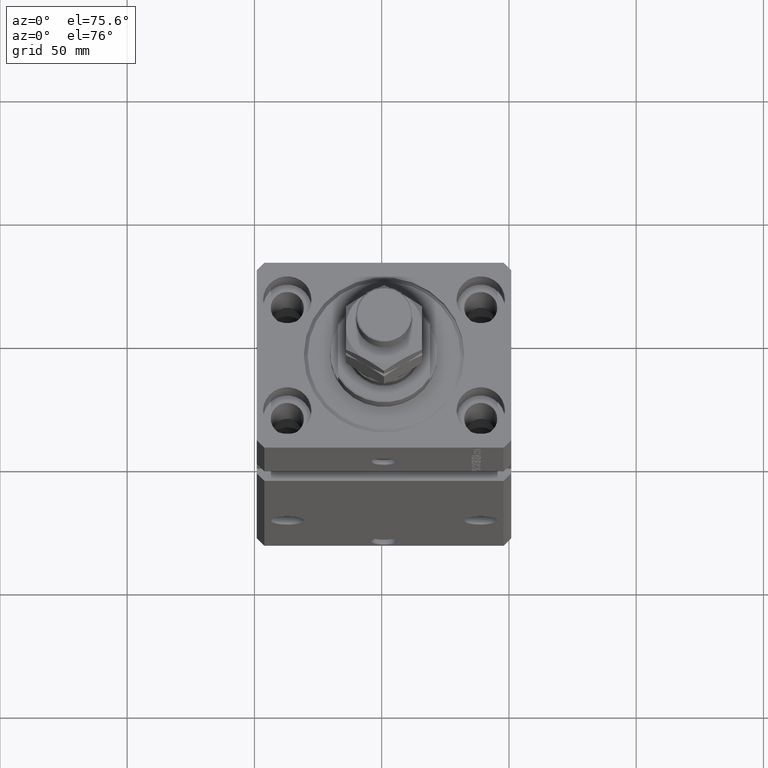
[diagram: clean part render]
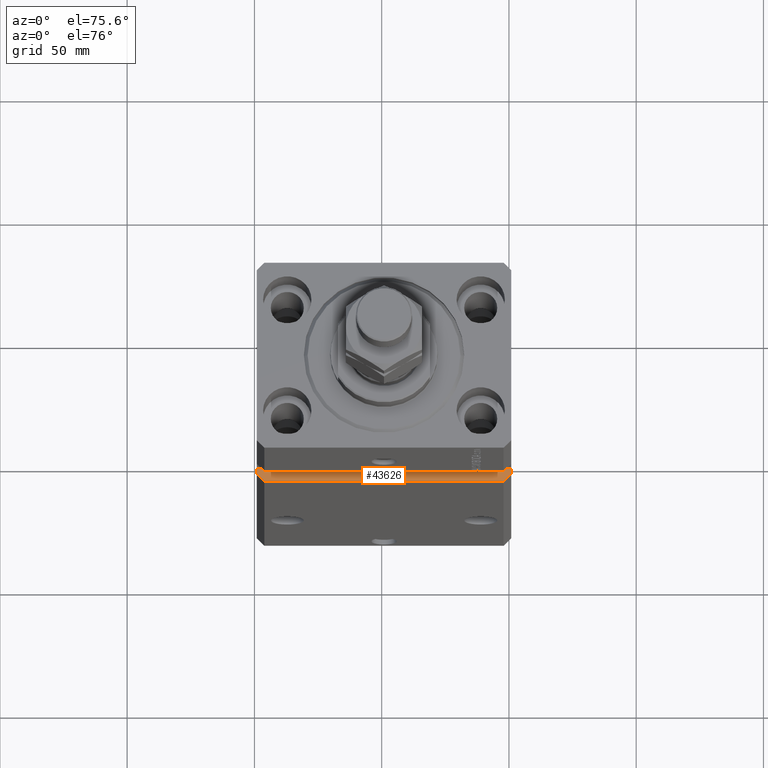
[diagram: same view with one face highlighted and labeled with its STEP entity id]
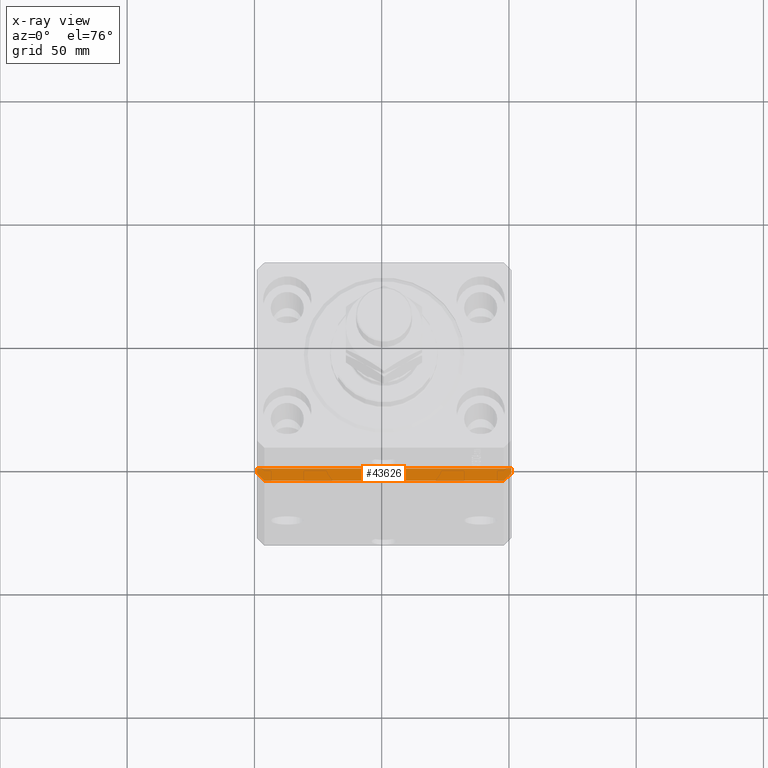
[diagram: x-ray of the same camera — body ghosted, the highlighted face saturated]
A machine part, auxiliary view. The second image highlights one B-rep face of the part: STEP entity #43626.
The next image is the same camera in x-ray: the body ghosted, the highlighted face saturated — about 0% of this face is hidden behind the body in this view.
In plain terms, the highlighted planar face has unit normal (0, 0, -1).
Its self-contained STEP definition (entity closure, byte-faithful):
#175 = ORIENTED_EDGE ( 'NONE', *, *, #21799, .F. ) ;
#526 = CARTESIAN_POINT ( 'NONE',  ( -50.00000000000002842, -34.50000000000000000, -52.50000000000000000 ) ) ;
#2287 = LINE ( 'NONE', #17913, #42913 ) ;
#2594 = VERTEX_POINT ( 'NONE', #8874 ) ;
#5393 = ORIENTED_EDGE ( 'NONE', *, *, #47267, .T. ) ;
#6454 = DIRECTION ( 'NONE',  ( 0.7071067811865483499, 0.7071067811865467956, 9.813077866773603112E-17 ) ) ;
#6485 = DIRECTION ( 'NONE',  ( 0.7071067811865491270, -0.7071067811865459074, 9.813077866773612973E-17 ) ) ;
#6704 = LINE ( 'NONE', #45675, #16743 ) ;
#8474 = CARTESIAN_POINT ( 'NONE',  ( -46.99999999999998579, -37.50000000000000711, -52.50000000000000000 ) ) ;
#8608 = CARTESIAN_POINT ( 'NONE',  ( -50.00000000000002842, -32.50000000000000711, -52.50000000000000000 ) ) ;
#8874 = CARTESIAN_POINT ( 'NONE',  ( 49.99999999999999289, -34.50000000000001421, -52.49999999999998579 ) ) ;
#9839 = VECTOR ( 'NONE', #41924, 1000.000000000000000 ) ;
#11243 = DIRECTION ( 'NONE',  ( 1.176083712526788232E-16, -1.000000000000000000, -0.000000000000000000 ) ) ;
#11334 = VECTOR ( 'NONE', #11243, 1000.000000000000000 ) ;
#13005 = VERTEX_POINT ( 'NONE', #46386 ) ;
#14938 = LINE ( 'NONE', #30315, #19704 ) ;
#16743 = VECTOR ( 'NONE', #6454, 1000.000000000000000 ) ;
#17171 = EDGE_LOOP ( 'NONE', ( #5393, #28041, #175, #47875, #37251, #49393 ) ) ;
#17501 = CARTESIAN_POINT ( 'NONE',  ( -50.00000000000002842, -32.50000000000000711, -52.50000000000000000 ) ) ;
#17913 = CARTESIAN_POINT ( 'NONE',  ( -50.00000000000002842, -37.50000000000000711, -52.50000000000000000 ) ) ;
#18187 = EDGE_CURVE ( 'NONE', #28534, #2594, #30727, .T. ) ;
#19403 = VERTEX_POINT ( 'NONE', #8474 ) ;
#19704 = VECTOR ( 'NONE', #6485, 1000.000000000000114 ) ;
#21799 = EDGE_CURVE ( 'NONE', #30201, #28534, #49877, .T. ) ;
#22003 = DIRECTION ( 'NONE',  ( 1.000000000000000000, 1.387778780781445182E-16, 1.387778780781445182E-16 ) ) ;
#23212 = CARTESIAN_POINT ( 'NONE',  ( -50.00000000000002842, -32.50000000000000711, -52.50000000000000000 ) ) ;
#27283 = CARTESIAN_POINT ( 'NONE',  ( -50.00000000000002842, -32.50000000000000711, -52.50000000000000000 ) ) ;
#28041 = ORIENTED_EDGE ( 'NONE', *, *, #18187, .F. ) ;
#28093 = FACE_OUTER_BOUND ( 'NONE', #17171, .T. ) ;
#28534 = VERTEX_POINT ( 'NONE', #41086 ) ;
#30201 = VERTEX_POINT ( 'NONE', #17501 ) ;
#30315 = CARTESIAN_POINT ( 'NONE',  ( -50.00000000000000711, -34.49999999999999289, -52.49999999999999289 ) ) ;
#30727 = LINE ( 'NONE', #33819, #11334 ) ;
#33569 = VERTEX_POINT ( 'NONE', #526 ) ;
#33819 = CARTESIAN_POINT ( 'NONE',  ( 49.99999999999999289, -32.49999999999999289, -52.49999999999998579 ) ) ;
#36726 = EDGE_CURVE ( 'NONE', #33569, #19403, #14938, .T. ) ;
#37251 = ORIENTED_EDGE ( 'NONE', *, *, #36726, .T. ) ;
#38864 = DIRECTION ( 'NONE',  ( 1.176083712526788232E-16, -1.000000000000000000, -0.000000000000000000 ) ) ;
#39887 = DIRECTION ( 'NONE',  ( -1.000000000000000000, 0.000000000000000000, -1.387778780781445182E-16 ) ) ;
#40493 = EDGE_CURVE ( 'NONE', #30201, #33569, #42712, .T. ) ;
#41086 = CARTESIAN_POINT ( 'NONE',  ( 49.99999999999999289, -32.49999999999999289, -52.49999999999998579 ) ) ;
#41924 = DIRECTION ( 'NONE',  ( 1.000000000000000000, 1.387778780781445182E-16, 1.387778780781445182E-16 ) ) ;
#42007 = VECTOR ( 'NONE', #38864, 1000.000000000000000 ) ;
#42712 = LINE ( 'NONE', #23212, #42007 ) ;
#42913 = VECTOR ( 'NONE', #22003, 1000.000000000000000 ) ;
#43626 = ADVANCED_FACE ( 'NONE', ( #28093 ), #43736, .F. ) ;
#43725 = AXIS2_PLACEMENT_3D ( 'NONE', #8608, #47075, #39887 ) ;
#43736 = PLANE ( 'NONE',  #43725 ) ;
#45675 = CARTESIAN_POINT ( 'NONE',  ( 46.99999999999999289, -37.50000000000001421, -52.49999999999997868 ) ) ;
#46339 = EDGE_CURVE ( 'NONE', #19403, #13005, #2287, .T. ) ;
#46386 = CARTESIAN_POINT ( 'NONE',  ( 47.00000000000000000, -37.49999999999999289, -52.49999999999998579 ) ) ;
#47075 = DIRECTION ( 'NONE',  ( 1.387778780781445182E-16, 1.632144020667341874E-32, -1.000000000000000000 ) ) ;
#47267 = EDGE_CURVE ( 'NONE', #13005, #2594, #6704, .T. ) ;
#47875 = ORIENTED_EDGE ( 'NONE', *, *, #40493, .T. ) ;
#49393 = ORIENTED_EDGE ( 'NONE', *, *, #46339, .T. ) ;
#49877 = LINE ( 'NONE', #27283, #9839 ) ;